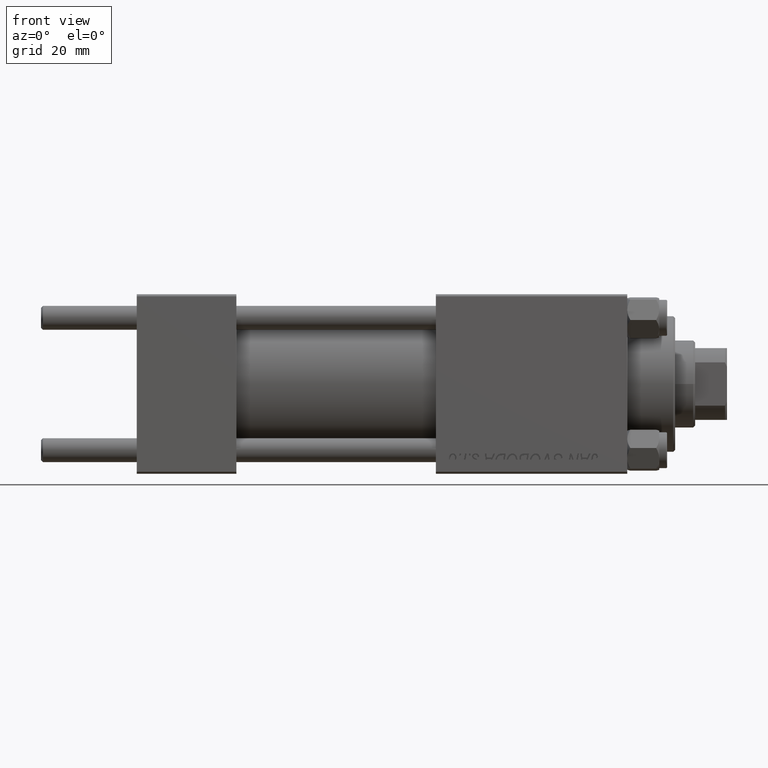
[diagram: clean part render]
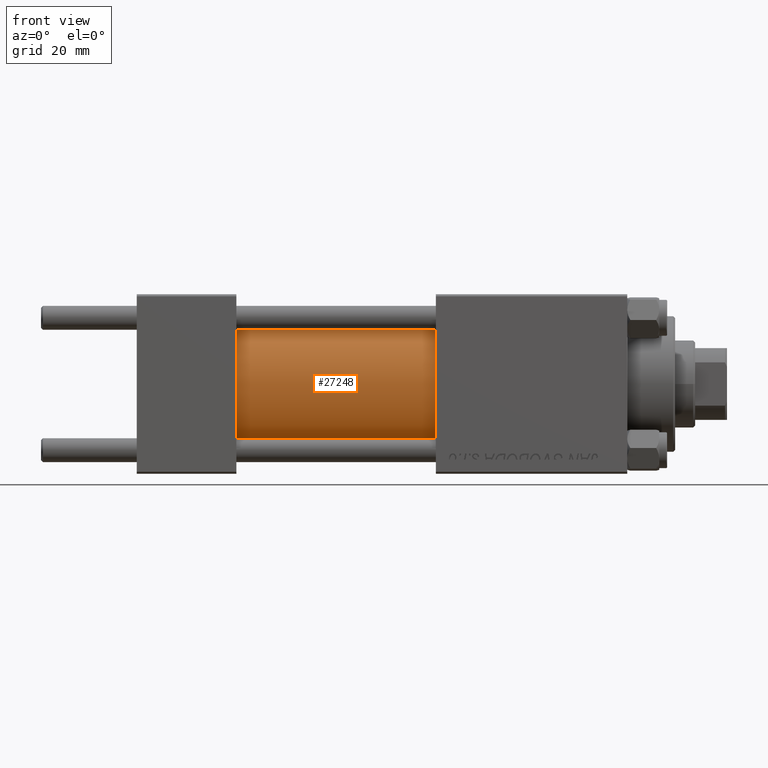
[diagram: same view with one face highlighted and labeled with its STEP entity id]
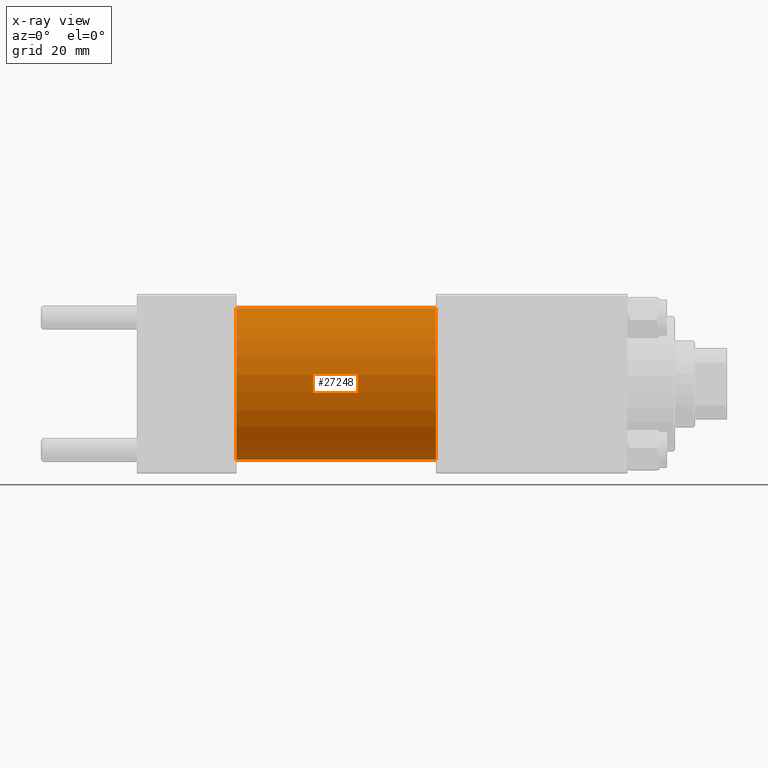
[diagram: x-ray of the same camera — body ghosted, the highlighted face saturated]
A machine part, front view. The second image highlights one B-rep face of the part: STEP entity #27248.
The next image is the same camera in x-ray: the body ghosted, the highlighted face saturated — about 0% of this face is hidden behind the body in this view.
In plain terms, the highlighted cylindrical surface (partial cylindrical patch) has radius 19 mm, axis along (-1, -0, -0).
Its self-contained STEP definition (entity closure, byte-faithful):
#1251 = CARTESIAN_POINT ( 'NONE',  ( 75.00000000000001421, 2.326828918379970970E-15, -19.00000000000000000 ) ) ;
#3318 = CARTESIAN_POINT ( 'NONE',  ( 75.00000000000001421, 2.326828918379970970E-15, -19.00000000000000000 ) ) ;
#3647 = CARTESIAN_POINT ( 'NONE',  ( 75.00000000000001421, 0.000000000000000000, 0.000000000000000000 ) ) ;
#6957 = AXIS2_PLACEMENT_3D ( 'NONE', #36601, #13321, #14348 ) ;
#7271 = EDGE_CURVE ( 'NONE', #22964, #34324, #21487, .T. ) ;
#7677 = DIRECTION ( 'NONE',  ( 0.000000000000000000, 0.000000000000000000, 1.000000000000000000 ) ) ;
#7810 = AXIS2_PLACEMENT_3D ( 'NONE', #25084, #16992, #20530 ) ;
#7997 = EDGE_CURVE ( 'NONE', #13602, #41891, #33698, .T. ) ;
#11493 = FACE_OUTER_BOUND ( 'NONE', #23134, .T. ) ;
#13321 = DIRECTION ( 'NONE',  ( 1.000000000000000000, -0.000000000000000000, 0.000000000000000000 ) ) ;
#13337 = VECTOR ( 'NONE', #48063, 1000.000000000000000 ) ;
#13602 = VERTEX_POINT ( 'NONE', #37759 ) ;
#14348 = DIRECTION ( 'NONE',  ( 0.000000000000000000, 0.000000000000000000, 1.000000000000000000 ) ) ;
#16992 = DIRECTION ( 'NONE',  ( 1.000000000000000000, 0.000000000000000000, 0.000000000000000000 ) ) ;
#20530 = DIRECTION ( 'NONE',  ( 0.000000000000000000, 0.000000000000000000, -1.000000000000000000 ) ) ;
#21487 = CIRCLE ( 'NONE', #6957, 19.00000000000000000 ) ;
#22357 = ORIENTED_EDGE ( 'NONE', *, *, #38996, .F. ) ;
#22964 = VERTEX_POINT ( 'NONE', #24332 ) ;
#23134 = EDGE_LOOP ( 'NONE', ( #22357, #48839, #39640, #47075 ) ) ;
#23880 = DIRECTION ( 'NONE',  ( -1.000000000000000000, -0.000000000000000000, -0.000000000000000000 ) ) ;
#24332 = CARTESIAN_POINT ( 'NONE',  ( 25.00000000000000000, 0.000000000000000000, 19.00000000000000000 ) ) ;
#25084 = CARTESIAN_POINT ( 'NONE',  ( 75.00000000000001421, 0.000000000000000000, 0.000000000000000000 ) ) ;
#27248 = ADVANCED_FACE ( 'NONE', ( #11493 ), #49456, .T. ) ;
#30856 = AXIS2_PLACEMENT_3D ( 'NONE', #3647, #46151, #7677 ) ;
#33698 = CIRCLE ( 'NONE', #7810, 19.00000000000000000 ) ;
#34324 = VERTEX_POINT ( 'NONE', #35695 ) ;
#35169 = EDGE_CURVE ( 'NONE', #13602, #22964, #43115, .T. ) ;
#35695 = CARTESIAN_POINT ( 'NONE',  ( 25.00000000000000000, 2.326828918379970970E-15, -19.00000000000000000 ) ) ;
#36601 = CARTESIAN_POINT ( 'NONE',  ( 25.00000000000000000, 0.000000000000000000, 0.000000000000000000 ) ) ;
#37759 = CARTESIAN_POINT ( 'NONE',  ( 75.00000000000001421, 0.000000000000000000, 19.00000000000000000 ) ) ;
#38996 = EDGE_CURVE ( 'NONE', #41891, #34324, #39708, .T. ) ;
#39562 = CARTESIAN_POINT ( 'NONE',  ( 75.00000000000001421, 0.000000000000000000, 19.00000000000000000 ) ) ;
#39640 = ORIENTED_EDGE ( 'NONE', *, *, #35169, .T. ) ;
#39708 = LINE ( 'NONE', #1251, #13337 ) ;
#41891 = VERTEX_POINT ( 'NONE', #3318 ) ;
#43115 = LINE ( 'NONE', #39562, #47183 ) ;
#46151 = DIRECTION ( 'NONE',  ( -1.000000000000000000, -0.000000000000000000, -0.000000000000000000 ) ) ;
#47075 = ORIENTED_EDGE ( 'NONE', *, *, #7271, .T. ) ;
#47183 = VECTOR ( 'NONE', #23880, 1000.000000000000000 ) ;
#48063 = DIRECTION ( 'NONE',  ( -1.000000000000000000, -0.000000000000000000, -0.000000000000000000 ) ) ;
#48839 = ORIENTED_EDGE ( 'NONE', *, *, #7997, .F. ) ;
#49456 = CYLINDRICAL_SURFACE ( 'NONE', #30856, 19.00000000000000000 ) ;